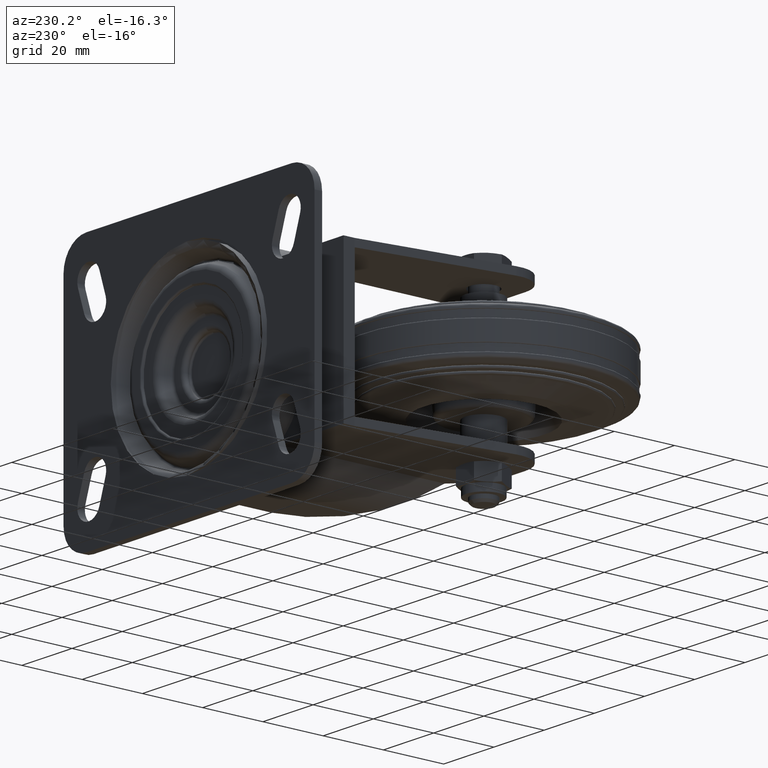
[diagram: clean part render]
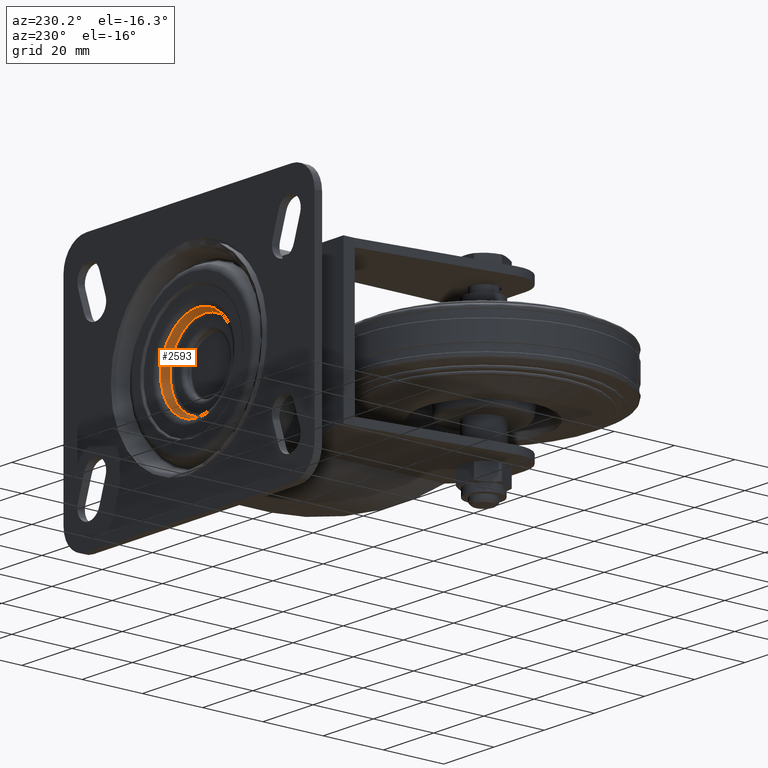
[diagram: same view with one face highlighted and labeled with its STEP entity id]
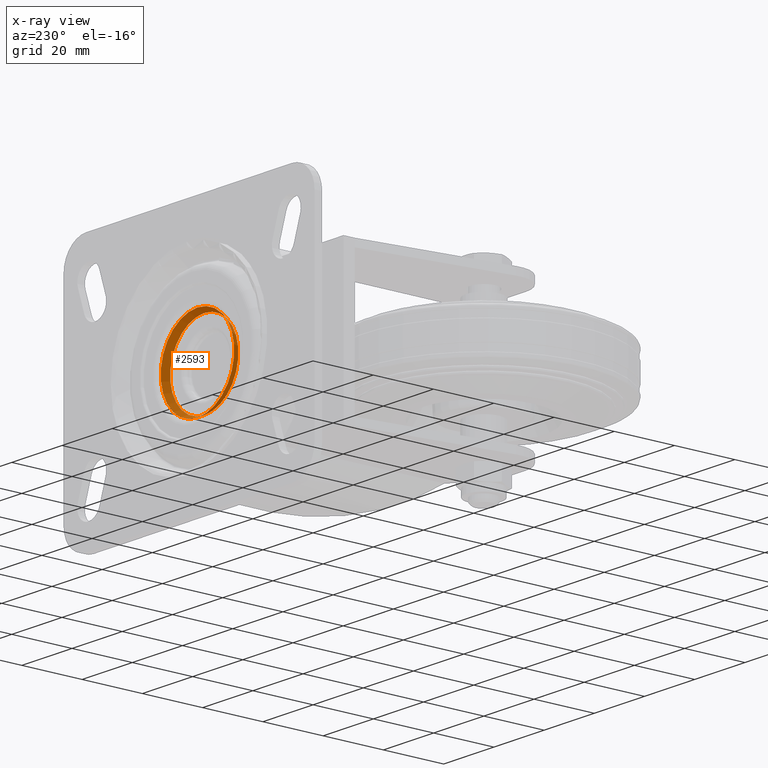
[diagram: x-ray of the same camera — body ghosted, the highlighted face saturated]
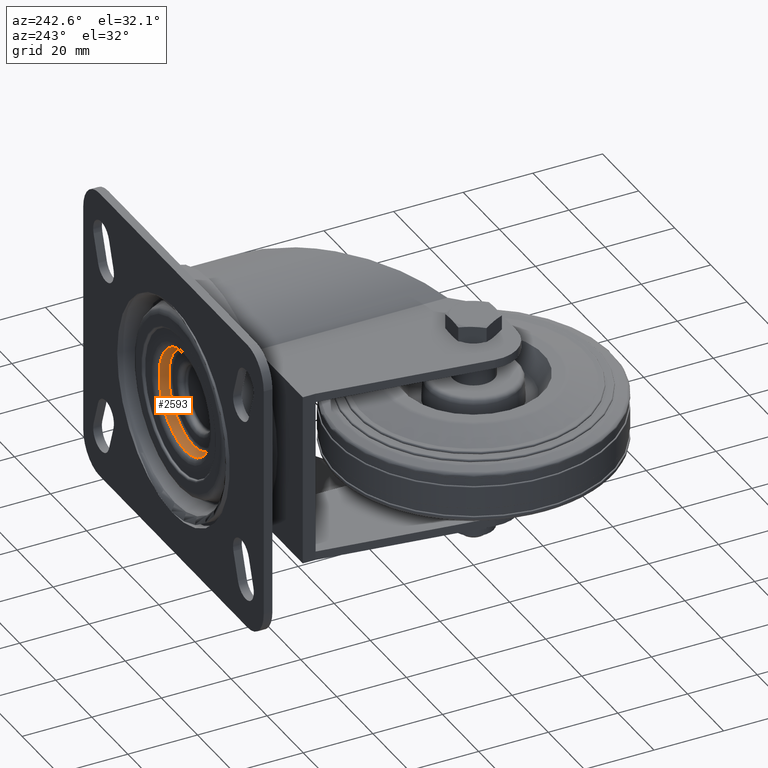
[diagram: same view with one face highlighted and labeled with its STEP entity id]
A machine part, auxiliary view. The second image highlights one B-rep face of the part: STEP entity #2593.
The next image is the same camera in x-ray: the body ghosted, the highlighted face saturated — about 0% of this face is hidden behind the body in this view.
A second angle (auxiliary view) of the same face is appended — the face is thin or edge-on in the first view.
In plain terms, the highlighted conical surface has half-angle 25 deg.
Its self-contained STEP definition (entity closure, byte-faithful):
#326=LINE('',#4647,#454);
#454=VECTOR('',#3664,13.5790068936092);
#620=FACE_OUTER_BOUND('',#811,.T.);
#811=EDGE_LOOP('',(#2210,#2211,#2212,#2213,#2214,#2215));
#985=CIRCLE('',#2975,13.5790068936092);
#986=CIRCLE('',#2976,13.5790068936092);
#988=CIRCLE('',#2979,14.6365249475417);
#989=CIRCLE('',#2980,14.6365249475417);
#1285=VERTEX_POINT('',#4640);
#1286=VERTEX_POINT('',#4641);
#1287=VERTEX_POINT('',#4646);
#1288=VERTEX_POINT('',#4648);
#1606=EDGE_CURVE('',#1285,#1286,#985,.T.);
#1607=EDGE_CURVE('',#1286,#1285,#986,.T.);
#1609=EDGE_CURVE('',#1285,#1287,#326,.T.);
#1610=EDGE_CURVE('',#1288,#1287,#988,.T.);
#1611=EDGE_CURVE('',#1287,#1288,#989,.T.);
#2210=ORIENTED_EDGE('',*,*,#1606,.T.);
#2211=ORIENTED_EDGE('',*,*,#1607,.T.);
#2212=ORIENTED_EDGE('',*,*,#1609,.T.);
#2213=ORIENTED_EDGE('',*,*,#1610,.F.);
#2214=ORIENTED_EDGE('',*,*,#1611,.F.);
#2215=ORIENTED_EDGE('',*,*,#1609,.F.);
#2476=CONICAL_SURFACE('',#2978,13.5790068936092,0.43633231299858);
#2593=ADVANCED_FACE('',(#620),#2476,.F.);
#2975=AXIS2_PLACEMENT_3D('',#4642,#3656,#3657);
#2976=AXIS2_PLACEMENT_3D('',#4643,#3658,#3659);
#2978=AXIS2_PLACEMENT_3D('',#4645,#3662,#3663);
#2979=AXIS2_PLACEMENT_3D('',#4649,#3665,#3666);
#2980=AXIS2_PLACEMENT_3D('',#4650,#3667,#3668);
#3656=DIRECTION('center_axis',(0.,-1.,0.));
#3657=DIRECTION('ref_axis',(0.,0.,-1.));
#3658=DIRECTION('center_axis',(0.,-1.,0.));
#3659=DIRECTION('ref_axis',(0.,0.,-1.));
#3662=DIRECTION('center_axis',(0.,1.,0.));
#3663=DIRECTION('ref_axis',(0.,0.,1.));
#3664=DIRECTION('',(-5.17558101501963E-17,0.906307787036651,-0.422618261740697));
#3665=DIRECTION('center_axis',(0.,-1.,0.));
#3666=DIRECTION('ref_axis',(0.,0.,-1.));
#3667=DIRECTION('center_axis',(0.,-1.,0.));
#3668=DIRECTION('ref_axis',(0.,0.,-1.));
#4640=CARTESIAN_POINT('',(39.,60.2773817382593,-13.5790068936092));
#4641=CARTESIAN_POINT('',(39.,60.2773817382593,13.5790068936092));
#4642=CARTESIAN_POINT('Origin',(39.,60.2773817382593,0.));
#4643=CARTESIAN_POINT('Origin',(39.,60.2773817382593,0.));
#4645=CARTESIAN_POINT('Origin',(39.,60.2773817382593,0.));
#4646=CARTESIAN_POINT('',(39.,62.5452365234814,-14.6365249475417));
#4647=CARTESIAN_POINT('',(39.,60.2773817382593,-13.5790068936092));
#4648=CARTESIAN_POINT('',(39.,62.5452365234814,14.6365249475417));
#4649=CARTESIAN_POINT('Origin',(39.,62.5452365234814,0.));
#4650=CARTESIAN_POINT('Origin',(39.,62.5452365234814,0.));